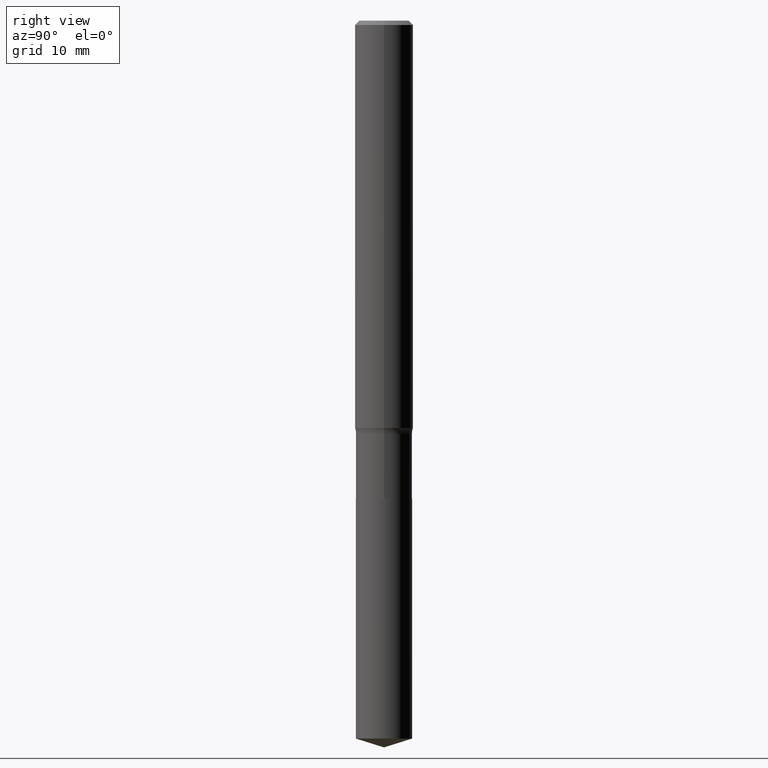
[diagram: clean part render]
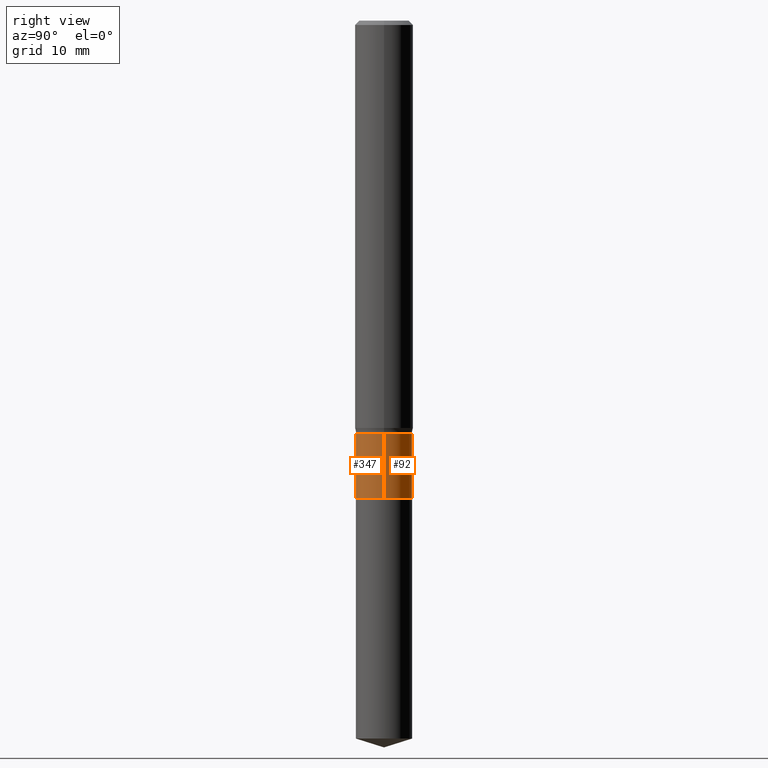
[diagram: same view with one multi-face feature highlighted, each face labeled with its STEP entity id]
A machine part, right view. The highlighted faces form ONE feature: a constant-radius fillet chain: 2 tangent blend faces with common blend radius 3.0734 mm. The faces share edges in the B-rep.
Their STEP definitions:
[1] entity #347 (Cylinder):
#4 = EDGE_CURVE ( 'NONE', #166, #441, #353, .T. ) ;
#15 = AXIS2_PLACEMENT_3D ( 'NONE', #112, #410, #76 ) ;
#35 = VECTOR ( 'NONE', #199, 39.37007874015748143 ) ;
#40 = CARTESIAN_POINT ( 'NONE',  ( 0.1209999999999999826, -8.449384840000380984E-16, 5.900173898713081917E-30 ) ) ;
#42 = ORIENTED_EDGE ( 'NONE', *, *, #93, .F. ) ;
#67 = FACE_OUTER_BOUND ( 'NONE', #315, .T. ) ;
#76 = DIRECTION ( 'NONE',  ( 1.000000000000000000, -6.982962677686270655E-15, 0.000000000000000000 ) ) ;
#93 = EDGE_CURVE ( 'NONE', #388, #322, #309, .T. ) ;
#112 = CARTESIAN_POINT ( 'NONE',  ( 4.343641693546039959E-29, -6.201569154053194613E-15, -1.776200000000000001 ) ) ;
#129 = ORIENTED_EDGE ( 'NONE', *, *, #248, .T. ) ;
#157 = DIRECTION ( 'NONE',  ( -2.445468806185136877E-29, 3.491481338843145188E-15, 1.000000000000000000 ) ) ;
#166 = VERTEX_POINT ( 'NONE', #413 ) ;
#178 = CARTESIAN_POINT ( 'NONE',  ( 0.1210000000000000242, -8.016441153983859932E-15, -2.054000000000000270 ) ) ;
#188 = CARTESIAN_POINT ( 'NONE',  ( -0.1209999999999999687, -5.826779201748786827E-15, -1.776200000000000001 ) ) ;
#191 = CARTESIAN_POINT ( 'NONE',  ( 5.022992927904271090E-29, -7.171502669983822228E-15, -2.054000000000000270 ) ) ;
#199 = DIRECTION ( 'NONE',  ( -2.445468806185136877E-29, 3.491481338843145188E-15, 1.000000000000000000 ) ) ;
#201 = AXIS2_PLACEMENT_3D ( 'NONE', #191, #385, #256 ) ;
#224 = CARTESIAN_POINT ( 'NONE',  ( 0.1209999999999999687, -7.046507638053233895E-15, -1.776200000000000001 ) ) ;
#240 = LINE ( 'NONE', #380, #35 ) ;
#248 = EDGE_CURVE ( 'NONE', #441, #322, #262, .T. ) ;
#256 = DIRECTION ( 'NONE',  ( 1.000000000000000000, -6.982962677686267499E-15, 0.000000000000000000 ) ) ;
#262 = LINE ( 'NONE', #40, #301 ) ;
#283 = EDGE_CURVE ( 'NONE', #166, #388, #240, .T. ) ;
#289 = DIRECTION ( 'NONE',  ( 1.000000000000000000, -6.982962677686265922E-15, 4.876176775795936353E-29 ) ) ;
#301 = VECTOR ( 'NONE', #157, 39.37007874015748143 ) ;
#302 = AXIS2_PLACEMENT_3D ( 'NONE', #482, #359, #289 ) ;
#309 = CIRCLE ( 'NONE', #15, 0.1209999999999999687 ) ;
#315 = EDGE_LOOP ( 'NONE', ( #398, #478, #129, #42 ) ) ;
#322 = VERTEX_POINT ( 'NONE', #224 ) ;
#347 = ADVANCED_FACE ( 'NONE', ( #67 ), #394, .T. ) ;
#353 = CIRCLE ( 'NONE', #201, 0.1210000000000000242 ) ;
#359 = DIRECTION ( 'NONE',  ( -2.445468806185136597E-29, 3.491481338843145583E-15, 1.000000000000000000 ) ) ;
#380 = CARTESIAN_POINT ( 'NONE',  ( -0.1209999999999999826, 8.597567102697211011E-16, -5.951911459208435906E-30 ) ) ;
#385 = DIRECTION ( 'NONE',  ( -2.445468806185136597E-29, 3.491481338843145583E-15, 1.000000000000000000 ) ) ;
#388 = VERTEX_POINT ( 'NONE', #188 ) ;
#394 = CYLINDRICAL_SURFACE ( 'NONE', #302, 0.1209999999999999826 ) ;
#398 = ORIENTED_EDGE ( 'NONE', *, *, #283, .F. ) ;
#410 = DIRECTION ( 'NONE',  ( -2.445468806185136597E-29, 3.491481338843145583E-15, 1.000000000000000000 ) ) ;
#413 = CARTESIAN_POINT ( 'NONE',  ( -0.1210000000000000242, -5.826779201748786827E-15, -2.054000000000000270 ) ) ;
#441 = VERTEX_POINT ( 'NONE', #178 ) ;
#478 = ORIENTED_EDGE ( 'NONE', *, *, #4, .T. ) ;
#482 = CARTESIAN_POINT ( 'NONE',  ( 0.000000000000000000, 0.000000000000000000, 0.000000000000000000 ) ) ;
[2] entity #92 (Cylinder):
#3 = EDGE_LOOP ( 'NONE', ( #31, #164, #324, #198 ) ) ;
#21 = EDGE_CURVE ( 'NONE', #322, #388, #38, .T. ) ;
#31 = ORIENTED_EDGE ( 'NONE', *, *, #451, .T. ) ;
#35 = VECTOR ( 'NONE', #199, 39.37007874015748143 ) ;
#38 = CIRCLE ( 'NONE', #96, 0.1209999999999999687 ) ;
#40 = CARTESIAN_POINT ( 'NONE',  ( 0.1209999999999999826, -8.449384840000380984E-16, 5.900173898713081917E-30 ) ) ;
#48 = AXIS2_PLACEMENT_3D ( 'NONE', #64, #440, #219 ) ;
#55 = DIRECTION ( 'NONE',  ( 1.000000000000000000, -6.982962677686267499E-15, 0.000000000000000000 ) ) ;
#59 = FACE_OUTER_BOUND ( 'NONE', #3, .T. ) ;
#64 = CARTESIAN_POINT ( 'NONE',  ( 0.000000000000000000, 0.000000000000000000, 0.000000000000000000 ) ) ;
#92 = ADVANCED_FACE ( 'NONE', ( #59 ), #286, .T. ) ;
#96 = AXIS2_PLACEMENT_3D ( 'NONE', #222, #331, #401 ) ;
#157 = DIRECTION ( 'NONE',  ( -2.445468806185136877E-29, 3.491481338843145188E-15, 1.000000000000000000 ) ) ;
#164 = ORIENTED_EDGE ( 'NONE', *, *, #283, .T. ) ;
#166 = VERTEX_POINT ( 'NONE', #413 ) ;
#178 = CARTESIAN_POINT ( 'NONE',  ( 0.1210000000000000242, -8.016441153983859932E-15, -2.054000000000000270 ) ) ;
#188 = CARTESIAN_POINT ( 'NONE',  ( -0.1209999999999999687, -5.826779201748786827E-15, -1.776200000000000001 ) ) ;
#198 = ORIENTED_EDGE ( 'NONE', *, *, #248, .F. ) ;
#199 = DIRECTION ( 'NONE',  ( -2.445468806185136877E-29, 3.491481338843145188E-15, 1.000000000000000000 ) ) ;
#219 = DIRECTION ( 'NONE',  ( 1.000000000000000000, -6.982962677686265922E-15, 4.876176775795936353E-29 ) ) ;
#220 = CARTESIAN_POINT ( 'NONE',  ( 5.022992927904271090E-29, -7.171502669983822228E-15, -2.054000000000000270 ) ) ;
#222 = CARTESIAN_POINT ( 'NONE',  ( 4.343641693546039959E-29, -6.201569154053194613E-15, -1.776200000000000001 ) ) ;
#223 = DIRECTION ( 'NONE',  ( -2.445468806185136597E-29, 3.491481338843145583E-15, 1.000000000000000000 ) ) ;
#224 = CARTESIAN_POINT ( 'NONE',  ( 0.1209999999999999687, -7.046507638053233895E-15, -1.776200000000000001 ) ) ;
#240 = LINE ( 'NONE', #380, #35 ) ;
#248 = EDGE_CURVE ( 'NONE', #441, #322, #262, .T. ) ;
#262 = LINE ( 'NONE', #40, #301 ) ;
#283 = EDGE_CURVE ( 'NONE', #166, #388, #240, .T. ) ;
#286 = CYLINDRICAL_SURFACE ( 'NONE', #48, 0.1209999999999999826 ) ;
#301 = VECTOR ( 'NONE', #157, 39.37007874015748143 ) ;
#322 = VERTEX_POINT ( 'NONE', #224 ) ;
#324 = ORIENTED_EDGE ( 'NONE', *, *, #21, .F. ) ;
#331 = DIRECTION ( 'NONE',  ( -2.445468806185136597E-29, 3.491481338843145583E-15, 1.000000000000000000 ) ) ;
#380 = CARTESIAN_POINT ( 'NONE',  ( -0.1209999999999999826, 8.597567102697211011E-16, -5.951911459208435906E-30 ) ) ;
#384 = AXIS2_PLACEMENT_3D ( 'NONE', #220, #223, #55 ) ;
#388 = VERTEX_POINT ( 'NONE', #188 ) ;
#401 = DIRECTION ( 'NONE',  ( 1.000000000000000000, -6.982962677686270655E-15, 0.000000000000000000 ) ) ;
#413 = CARTESIAN_POINT ( 'NONE',  ( -0.1210000000000000242, -5.826779201748786827E-15, -2.054000000000000270 ) ) ;
#433 = CIRCLE ( 'NONE', #384, 0.1210000000000000242 ) ;
#440 = DIRECTION ( 'NONE',  ( -2.445468806185136597E-29, 3.491481338843145583E-15, 1.000000000000000000 ) ) ;
#441 = VERTEX_POINT ( 'NONE', #178 ) ;
#451 = EDGE_CURVE ( 'NONE', #441, #166, #433, .T. ) ;